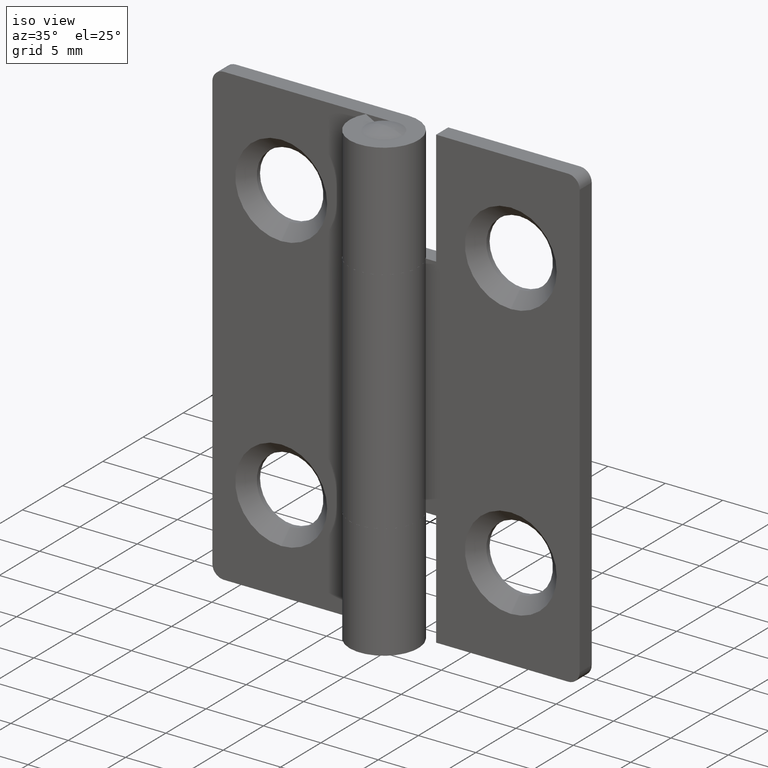
[diagram: clean part render]
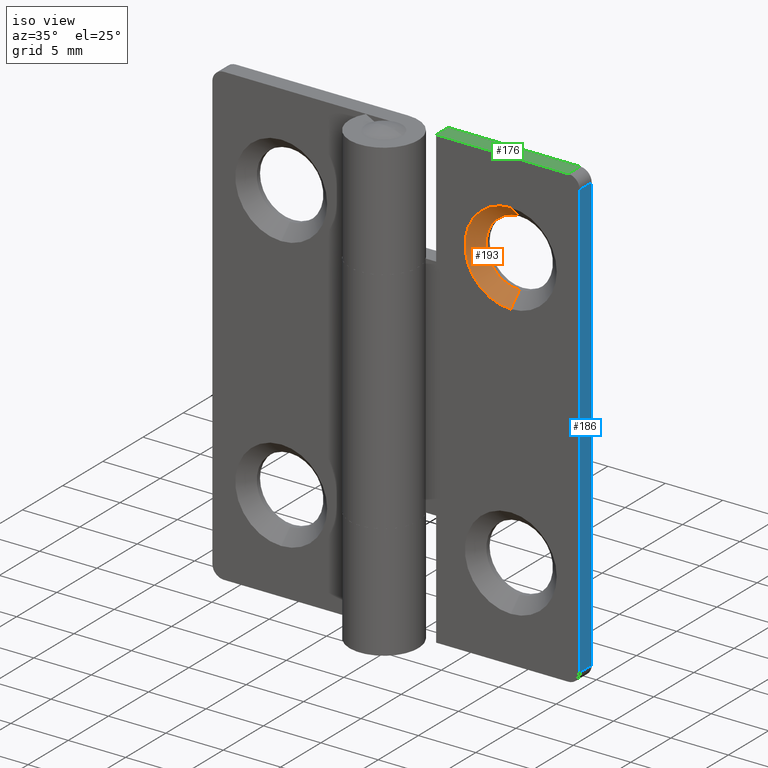
[diagram: same view with three faces highlighted in distinct colors, each labeled with its STEP entity id]
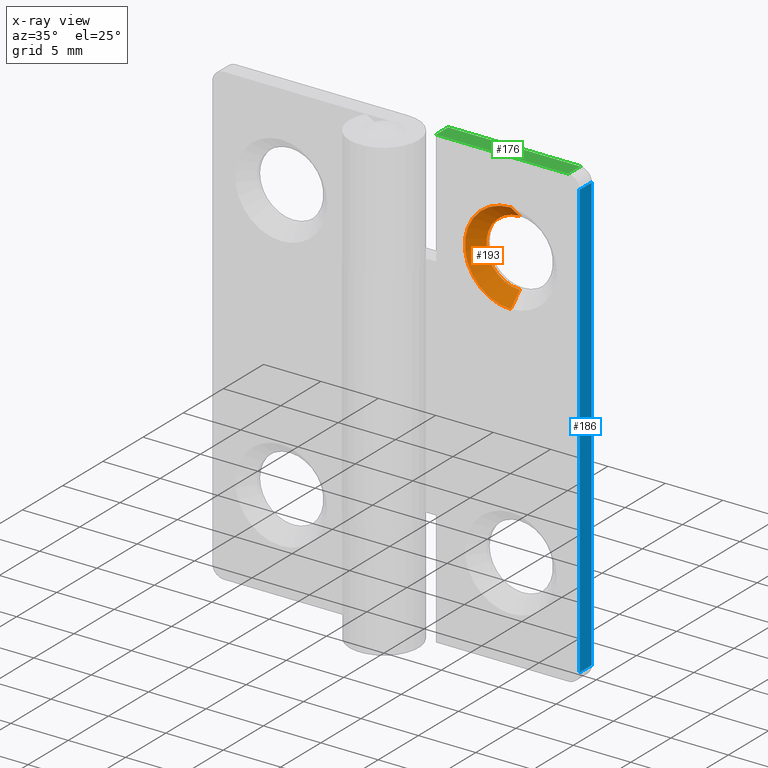
[diagram: x-ray of the same camera — body ghosted, the three highlighted faces saturated]
A machine part, iso view with three faces highlighted in distinct colors.
The next image is the same camera in x-ray (body ghosted, the three faces saturated) — at least one of them is partly hidden behind the body in this view.
Their STEP definitions:

[orange] entity #193 — the highlighted face is a freeform B-spline surface patch.
#193=ADVANCED_FACE('',(#652),#651,.F.);
#651=( BOUNDED_SURFACE() B_SPLINE_SURFACE( 2,1,((#1017,#1018),(#1019,#1020),(#1021,#1022),(#1023,#1024),(#1025,#1026)), .UNSPECIFIED.,.F.,.F.,.F.) B_SPLINE_SURFACE_WITH_KNOTS((3,2,3),(2,2),(0.00000000000E+00,5.00000000000E-01,1.00000000000E+00),(0.00000000000E+00,1.00000000000E+00), .UNSPECIFIED. ) GEOMETRIC_REPRESENTATION_ITEM() RATIONAL_B_SPLINE_SURFACE(((1.00000000000E+00,1.00000000000E+00),(7.07106781187E-01,7.07106781187E-01),(1.00000000000E+00,1.00000000000E+00),(7.07106781187E-01,7.07106781187E-01),(1.00000000000E+00,1.00000000000E+00))) REPRESENTATION_ITEM('') SURFACE() );
#652=FACE_OUTER_BOUND('',#1027,.T.);
#1017=CARTESIAN_POINT('',(1.13686837722E-13,2.49999999993E+00,2.40000000000E+01));
#1018=CARTESIAN_POINT('',(1.12301308032E-13,-3.15685424946E+00,2.96568542495E+01));
#1019=CARTESIAN_POINT('',(1.13686837722E-13,2.49999999993E+00,2.40000000000E+01));
#1020=CARTESIAN_POINT('',(-5.65685424950E+00,-3.15685424946E+00,2.96568542495E+01));
#1021=CARTESIAN_POINT('',(1.13686837722E-13,2.49999999993E+00,2.40000000000E+01));
#1022=CARTESIAN_POINT('',(-5.65685424950E+00,-3.15685424946E+00,2.40000000000E+01));
#1023=CARTESIAN_POINT('',(1.13686837722E-13,2.49999999993E+00,2.40000000000E+01));
#1024=CARTESIAN_POINT('',(-5.65685424950E+00,-3.15685424946E+00,1.83431457505E+01));
#1025=CARTESIAN_POINT('',(1.13686837722E-13,2.49999999993E+00,2.40000000000E+01));
#1026=CARTESIAN_POINT('',(1.14379602567E-13,-3.15685424946E+00,1.83431457505E+01));
#1027=EDGE_LOOP('',(#1324,#1325,#1326,#1327));
#1324=ORIENTED_EDGE('',*,*,#1484,.F.);
#1325=ORIENTED_EDGE('',*,*,#1485,.T.);
#1326=ORIENTED_EDGE('',*,*,#1454,.F.);
#1327=ORIENTED_EDGE('',*,*,#1486,.F.);
#1454=EDGE_CURVE('',#2124,#2131,#2132,.T.);
#1484=EDGE_CURVE('',#2304,#2303,#2323,.T.);
#1485=EDGE_CURVE('',#2304,#2131,#2329,.T.);
#1486=EDGE_CURVE('',#2303,#2124,#2335,.T.);
#2124=VERTEX_POINT('',#2812);
#2131=VERTEX_POINT('',#2817);
#2132=CIRCLE('',#2821,4.00000000001E+00);
#2303=VERTEX_POINT('',#2915);
#2304=VERTEX_POINT('',#2916);
#2323=CIRCLE('',#2928,2.90000000000E+00);
#2329=(BOUNDED_CURVE() B_SPLINE_CURVE(1,(#2929,#2930),.UNSPECIFIED.,.F.,.F.) B_SPLINE_CURVE_WITH_KNOTS((2,2),(5.12652418443E-01,7.07106785097E-01),.UNSPECIFIED.) CURVE() GEOMETRIC_REPRESENTATION_ITEM() RATIONAL_B_SPLINE_CURVE((1.00000000000E+00,1.00000000000E+00)) REPRESENTATION_ITEM('') );
#2335=(BOUNDED_CURVE() B_SPLINE_CURVE(1,(#2931,#2932),.UNSPECIFIED.,.F.,.F.) B_SPLINE_CURVE_WITH_KNOTS((2,2),(5.12652387330E-01,7.07106587738E-01),.UNSPECIFIED.) CURVE() GEOMETRIC_REPRESENTATION_ITEM() RATIONAL_B_SPLINE_CURVE((7.50000000000E-01,7.50000000000E-01)) REPRESENTATION_ITEM('') );
#2812=CARTESIAN_POINT('',(-4.15150941883E-04,-1.50000000000E+00,2.00000000215E+01));
#2817=CARTESIAN_POINT('',(5.78649128113E-11,-1.50000000000E+00,2.80000000000E+01));
#2818=CARTESIAN_POINT('',(1.13686837722E-13,-1.50000000000E+00,2.40000000000E+01));
#2819=DIRECTION('',(-7.10152422978E-15,1.00000000000E+00,1.75162308041E-46));
#2820=DIRECTION('',(1.00000000000E+00,7.10152422978E-15,-1.22460635382E-16));
#2821=AXIS2_PLACEMENT_3D('',#2818,#2819,#2820);
#2915=CARTESIAN_POINT('',(1.13686837722E-13,-4.00000000013E-01,2.11000000000E+01));
#2916=CARTESIAN_POINT('',(1.13538807985E-13,-4.00000000013E-01,2.69000000000E+01));
#2925=CARTESIAN_POINT('',(1.13686837722E-13,-4.00000000013E-01,2.40000000000E+01));
#2926=DIRECTION('',(0.00000000000E+00,-1.00000000000E+00,-0.00000000000E+00));
#2927=DIRECTION('',(-1.22460635382E-16,0.00000000000E+00,-1.00000000000E+00));
#2928=AXIS2_PLACEMENT_3D('',#2925,#2926,#2927);
#2929=CARTESIAN_POINT('',(1.12976542575E-13,-4.00000011800E-01,2.69000000118E+01));
#2930=CARTESIAN_POINT('',(1.12707120277E-13,-1.50000002212E+00,2.80000000221E+01));
#2931=CARTESIAN_POINT('',(1.14597491296E-13,-3.99999835801E-01,2.11000001642E+01));
#2932=CARTESIAN_POINT('',(1.14942911345E-13,-1.49999890569E+00,2.00000010943E+01));

[blue] entity #186 — the highlighted planar face has unit normal (1, 0, 0).
#186=ADVANCED_FACE('',(#582),#581,.T.);
#581=PLANE('',#973);
#582=FACE_OUTER_BOUND('',#974,.T.);
#970=CARTESIAN_POINT('',(6.00000000000E+00,-1.65000000000E+00,3.48000000000E+01));
#971=DIRECTION('',(1.00000000000E+00,0.00000000000E+00,-0.00000000000E+00));
#972=DIRECTION('',(-0.00000000000E+00,0.00000000000E+00,-1.00000000000E+00));
#973=AXIS2_PLACEMENT_3D('',#970,#971,#972);
#974=EDGE_LOOP('',(#1293,#1294,#1295,#1296));
#1293=ORIENTED_EDGE('',*,*,#1445,.T.);
#1294=ORIENTED_EDGE('',*,*,#1466,.T.);
#1295=ORIENTED_EDGE('',*,*,#1427,.F.);
#1296=ORIENTED_EDGE('',*,*,#1467,.T.);
#1427=EDGE_CURVE('',#1941,#1942,#1943,.T.);
#1445=EDGE_CURVE('',#2068,#2061,#2069,.T.);
#1466=EDGE_CURVE('',#2061,#1942,#2209,.T.);
#1467=EDGE_CURVE('',#1941,#2068,#2215,.T.);
#1941=VERTEX_POINT('',#2697);
#1942=VERTEX_POINT('',#2698);
#1943=LINE('',#2699,#2700);
#2061=VERTEX_POINT('',#2774);
#2068=VERTEX_POINT('',#2779);
#2069=LINE('',#2780,#2781);
#2209=LINE('',#2866,#2867);
#2215=LINE('',#2869,#2870);
#2697=CARTESIAN_POINT('',(6.00000000000E+00,0.00000000000E+00,3.10000000000E+01));
#2698=CARTESIAN_POINT('',(6.00000000000E+00,0.00000000000E+00,-7.00000000000E+00));
#2699=CARTESIAN_POINT('',(6.00000000000E+00,0.00000000000E+00,3.10000000000E+01));
#2700=VECTOR('',#2701,3.80000000000E+01);
#2701=DIRECTION('',(0.00000000000E+00,0.00000000000E+00,-1.00000000000E+00));
#2774=CARTESIAN_POINT('',(6.00000000000E+00,-1.50000000000E+00,-7.00000000000E+00));
#2779=CARTESIAN_POINT('',(6.00000000000E+00,-1.50000000000E+00,3.10000000000E+01));
#2780=CARTESIAN_POINT('',(6.00000000000E+00,-1.50000000000E+00,3.10000000000E+01));
#2781=VECTOR('',#2782,3.80000000000E+01);
#2782=DIRECTION('',(0.00000000000E+00,0.00000000000E+00,-1.00000000000E+00));
#2866=CARTESIAN_POINT('',(6.00000000000E+00,-1.50000000000E+00,-7.00000000000E+00));
#2867=VECTOR('',#2868,1.50000000000E+00);
#2868=DIRECTION('',(0.00000000000E+00,1.00000000000E+00,0.00000000000E+00));
#2869=CARTESIAN_POINT('',(6.00000000000E+00,0.00000000000E+00,3.10000000000E+01));
#2870=VECTOR('',#2871,1.50000000000E+00);
#2871=DIRECTION('',(0.00000000000E+00,-1.00000000000E+00,0.00000000000E+00));

[green] entity #176 — the highlighted planar face has unit normal (0, 0, 1).
#176=ADVANCED_FACE('',(#482),#481,.T.);
#481=PLANE('',#923);
#482=FACE_OUTER_BOUND('',#924,.T.);
#920=CARTESIAN_POINT('',(-7.65000000000E+00,-1.65000000000E+00,3.20000000000E+01));
#921=DIRECTION('',(0.00000000000E+00,-0.00000000000E+00,1.00000000000E+00));
#922=DIRECTION('',(1.00000000000E+00,0.00000000000E+00,0.00000000000E+00));
#923=AXIS2_PLACEMENT_3D('',#920,#921,#922);
#924=EDGE_LOOP('',(#1249,#1250,#1251,#1252));
#1249=ORIENTED_EDGE('',*,*,#1447,.F.);
#1250=ORIENTED_EDGE('',*,*,#1462,.T.);
#1251=ORIENTED_EDGE('',*,*,#1435,.F.);
#1252=ORIENTED_EDGE('',*,*,#1463,.F.);
#1435=EDGE_CURVE('',#1991,#1998,#1999,.T.);
#1447=EDGE_CURVE('',#2075,#2082,#2083,.T.);
#1462=EDGE_CURVE('',#2075,#1998,#2185,.T.);
#1463=EDGE_CURVE('',#2082,#1991,#2191,.T.);
#1991=VERTEX_POINT('',#2727);
#1998=VERTEX_POINT('',#2731);
#1999=LINE('',#2732,#2733);
#2075=VERTEX_POINT('',#2783);
#2082=VERTEX_POINT('',#2788);
#2083=LINE('',#2789,#2790);
#2185=LINE('',#2854,#2855);
#2191=LINE('',#2857,#2858);
#2727=CARTESIAN_POINT('',(-6.50000000000E+00,0.00000000000E+00,3.20000000000E+01));
#2731=CARTESIAN_POINT('',(5.00000000000E+00,-7.10542735760E-15,3.20000000000E+01));
#2732=CARTESIAN_POINT('',(-6.50000000000E+00,-8.88178419700E-14,3.20000000000E+01));
#2733=VECTOR('',#2734,1.15000000000E+01);
#2734=DIRECTION('',(1.00000000000E+00,7.10542735760E-15,0.00000000000E+00));
#2783=CARTESIAN_POINT('',(5.00000000000E+00,-1.50000000000E+00,3.20000000000E+01));
#2788=CARTESIAN_POINT('',(-6.50000000000E+00,-1.50000000000E+00,3.20000000000E+01));
#2789=CARTESIAN_POINT('',(5.00000000000E+00,-1.50000000000E+00,3.20000000000E+01));
#2790=VECTOR('',#2791,1.15000000000E+01);
#2791=DIRECTION('',(-1.00000000000E+00,-7.10542735760E-15,0.00000000000E+00));
#2854=CARTESIAN_POINT('',(5.00000000000E+00,-1.50000000000E+00,3.20000000000E+01));
#2855=VECTOR('',#2856,1.50000000000E+00);
#2856=DIRECTION('',(0.00000000000E+00,1.00000000000E+00,0.00000000000E+00));
#2857=CARTESIAN_POINT('',(-6.50000000000E+00,-1.50000000000E+00,3.20000000000E+01));
#2858=VECTOR('',#2859,1.50000000000E+00);
#2859=DIRECTION('',(0.00000000000E+00,1.00000000000E+00,0.00000000000E+00));